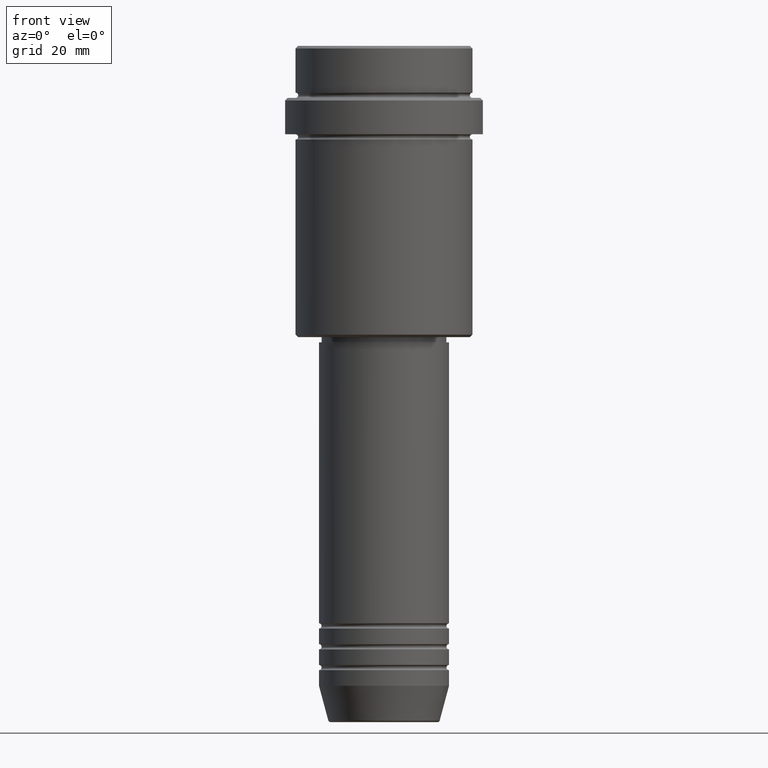
[diagram: clean part render]
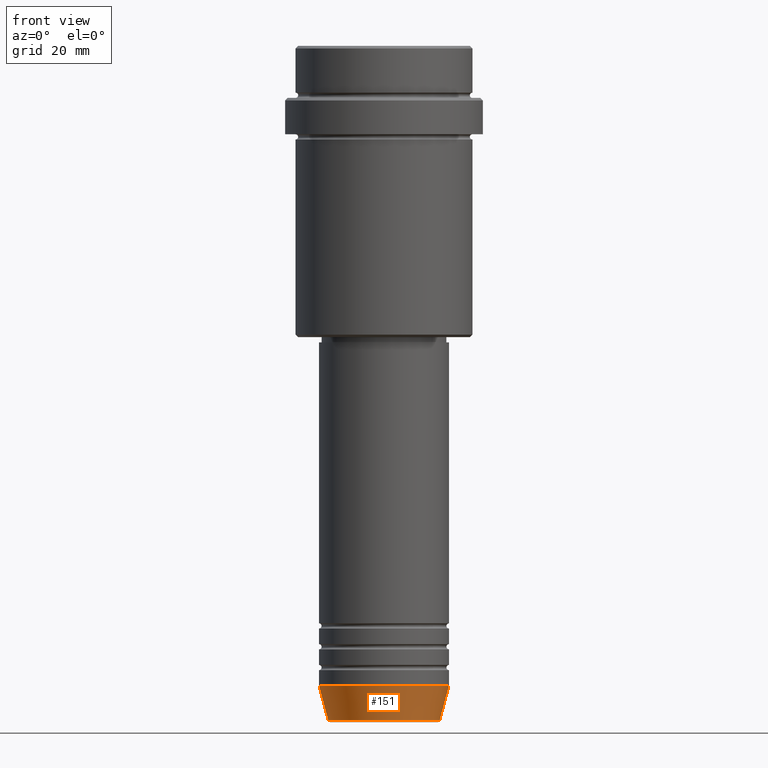
[diagram: same view with one face highlighted and labeled with its STEP entity id]
A machine part, front view. The second image highlights one B-rep face of the part: STEP entity #151.
In plain terms, the highlighted conical surface has half-angle 15 deg.
Its self-contained STEP definition (entity closure, byte-faithful):
#12 = DIRECTION ( 'NONE',  ( -0.000000000000000000, -0.000000000000000000, 1.000000000000000000 ) ) ;
#17 = VECTOR ( 'NONE', #334, 1000.000000000000000 ) ;
#26 = ORIENTED_EDGE ( 'NONE', *, *, #790, .T. ) ;
#42 = DIRECTION ( 'NONE',  ( -0.000000000000000000, -0.000000000000000000, 1.000000000000000000 ) ) ;
#56 = VERTEX_POINT ( 'NONE', #110 ) ;
#110 = CARTESIAN_POINT ( 'NONE',  ( -10.72365507213718416, 1.422038742429750121E-15, -129.6294095225512706 ) ) ;
#151 = ADVANCED_FACE ( 'NONE', ( #1303 ), #947, .T. ) ;
#159 = DIRECTION ( 'NONE',  ( 0.2588190451025213501, 0.000000000000000000, 0.9659258262890680902 ) ) ;
#168 = ORIENTED_EDGE ( 'NONE', *, *, #1015, .F. ) ;
#217 = DIRECTION ( 'NONE',  ( 1.000000000000000000, 0.000000000000000000, 0.000000000000000000 ) ) ;
#257 = LINE ( 'NONE', #1122, #1022 ) ;
#334 = DIRECTION ( 'NONE',  ( -0.2588190451025213501, 3.169619151431772337E-17, 0.9659258262890680902 ) ) ;
#344 = EDGE_CURVE ( 'NONE', #56, #1399, #752, .T. ) ;
#424 = CARTESIAN_POINT ( 'NONE',  ( 0.000000000000000000, 0.000000000000000000, -123.0000000000000000 ) ) ;
#471 = ORIENTED_EDGE ( 'NONE', *, *, #344, .F. ) ;
#509 = CARTESIAN_POINT ( 'NONE',  ( 10.72365507213718416, 0.000000000000000000, -129.6294095225512706 ) ) ;
#555 = CARTESIAN_POINT ( 'NONE',  ( 0.000000000000000000, 0.000000000000000000, -123.0000000000000000 ) ) ;
#556 = CARTESIAN_POINT ( 'NONE',  ( -12.50000000000000000, 1.530808498934191521E-15, -123.0000000000000000 ) ) ;
#561 = CARTESIAN_POINT ( 'NONE',  ( 12.50000000000000000, 0.000000000000000000, -123.0000000000000000 ) ) ;
#648 = CIRCLE ( 'NONE', #673, 12.50000000000000000 ) ;
#673 = AXIS2_PLACEMENT_3D ( 'NONE', #555, #42, #683 ) ;
#683 = DIRECTION ( 'NONE',  ( 1.000000000000000000, 0.000000000000000000, 0.000000000000000000 ) ) ;
#695 = ORIENTED_EDGE ( 'NONE', *, *, #746, .T. ) ;
#746 = EDGE_CURVE ( 'NONE', #1321, #1075, #257, .T. ) ;
#752 = LINE ( 'NONE', #1216, #17 ) ;
#790 = EDGE_CURVE ( 'NONE', #56, #1321, #1200, .T. ) ;
#923 = DIRECTION ( 'NONE',  ( -0.000000000000000000, -0.000000000000000000, 1.000000000000000000 ) ) ;
#947 = CONICAL_SURFACE ( 'NONE', #1074, 12.50000000000000000, 0.2617993877991500740 ) ;
#1002 = AXIS2_PLACEMENT_3D ( 'NONE', #1215, #923, #1400 ) ;
#1015 = EDGE_CURVE ( 'NONE', #1399, #1075, #648, .T. ) ;
#1022 = VECTOR ( 'NONE', #159, 1000.000000000000000 ) ;
#1074 = AXIS2_PLACEMENT_3D ( 'NONE', #424, #12, #217 ) ;
#1075 = VERTEX_POINT ( 'NONE', #561 ) ;
#1122 = CARTESIAN_POINT ( 'NONE',  ( 12.50000000000000000, 0.000000000000000000, -123.0000000000000000 ) ) ;
#1200 = CIRCLE ( 'NONE', #1002, 10.72365507213718416 ) ;
#1215 = CARTESIAN_POINT ( 'NONE',  ( 0.000000000000000000, 0.000000000000000000, -129.6294095225512706 ) ) ;
#1216 = CARTESIAN_POINT ( 'NONE',  ( -12.50000000000000000, 1.530808498934191521E-15, -123.0000000000000000 ) ) ;
#1281 = EDGE_LOOP ( 'NONE', ( #471, #26, #695, #168 ) ) ;
#1303 = FACE_OUTER_BOUND ( 'NONE', #1281, .T. ) ;
#1321 = VERTEX_POINT ( 'NONE', #509 ) ;
#1399 = VERTEX_POINT ( 'NONE', #556 ) ;
#1400 = DIRECTION ( 'NONE',  ( 1.000000000000000000, 0.000000000000000000, 0.000000000000000000 ) ) ;